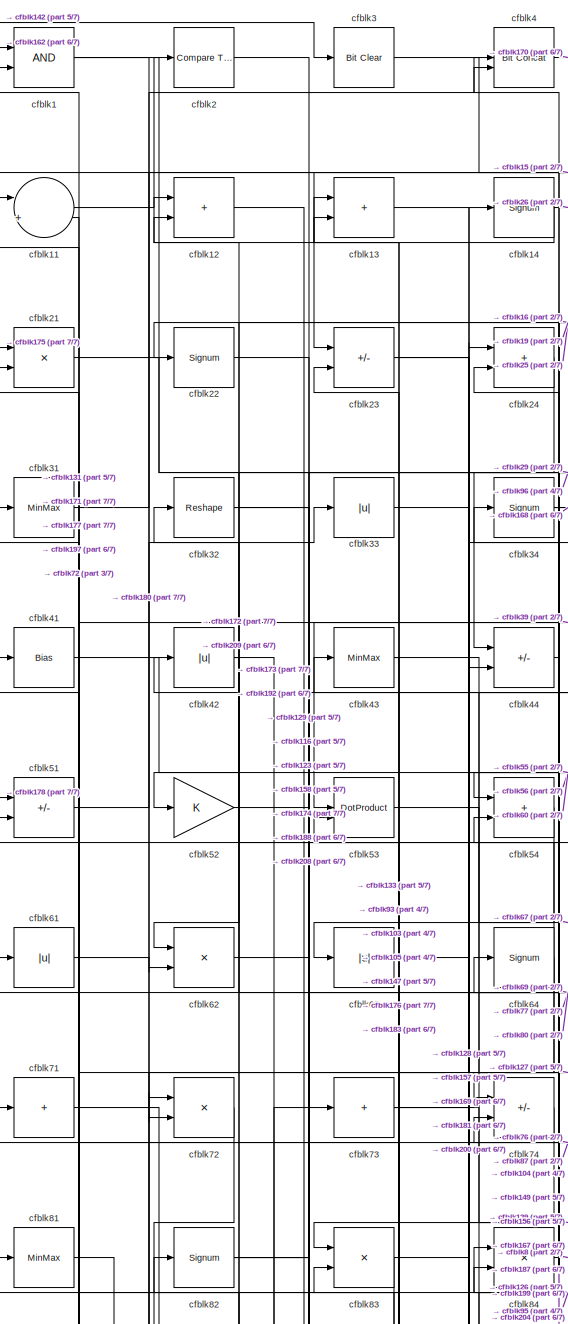
[diagram: root canvas - part 1/7, top left region]
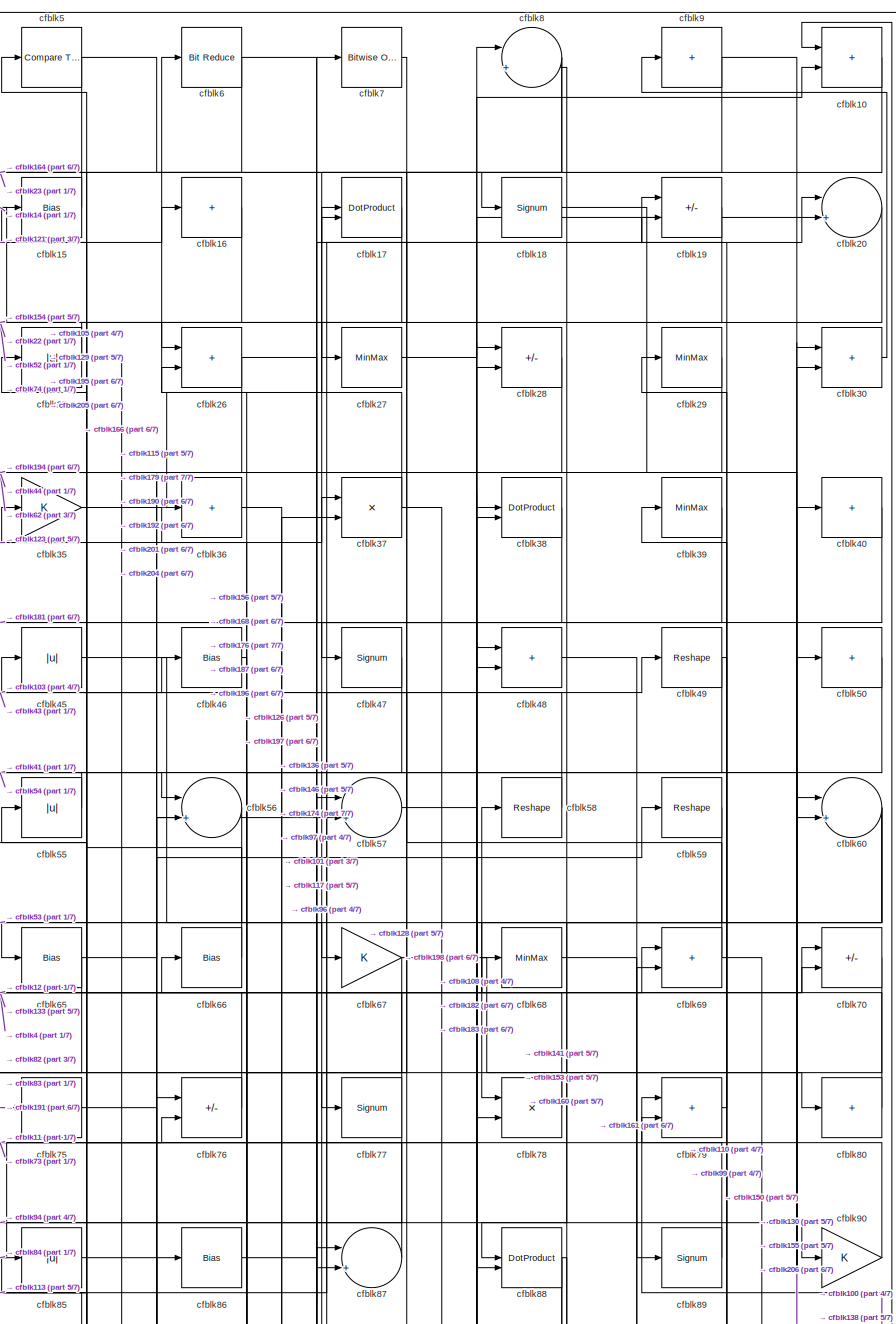
[diagram: root canvas - part 2/7, top right region]
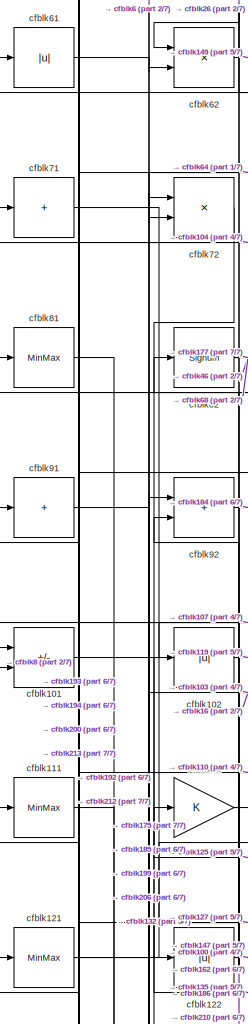
[diagram: root canvas - part 3/7, middle left region]
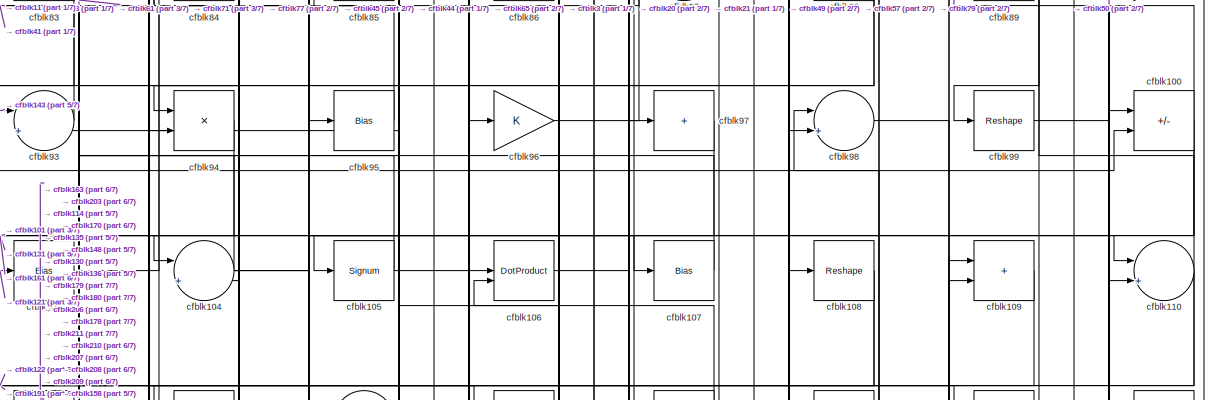
[diagram: root canvas - part 4/7, full width, middle band]
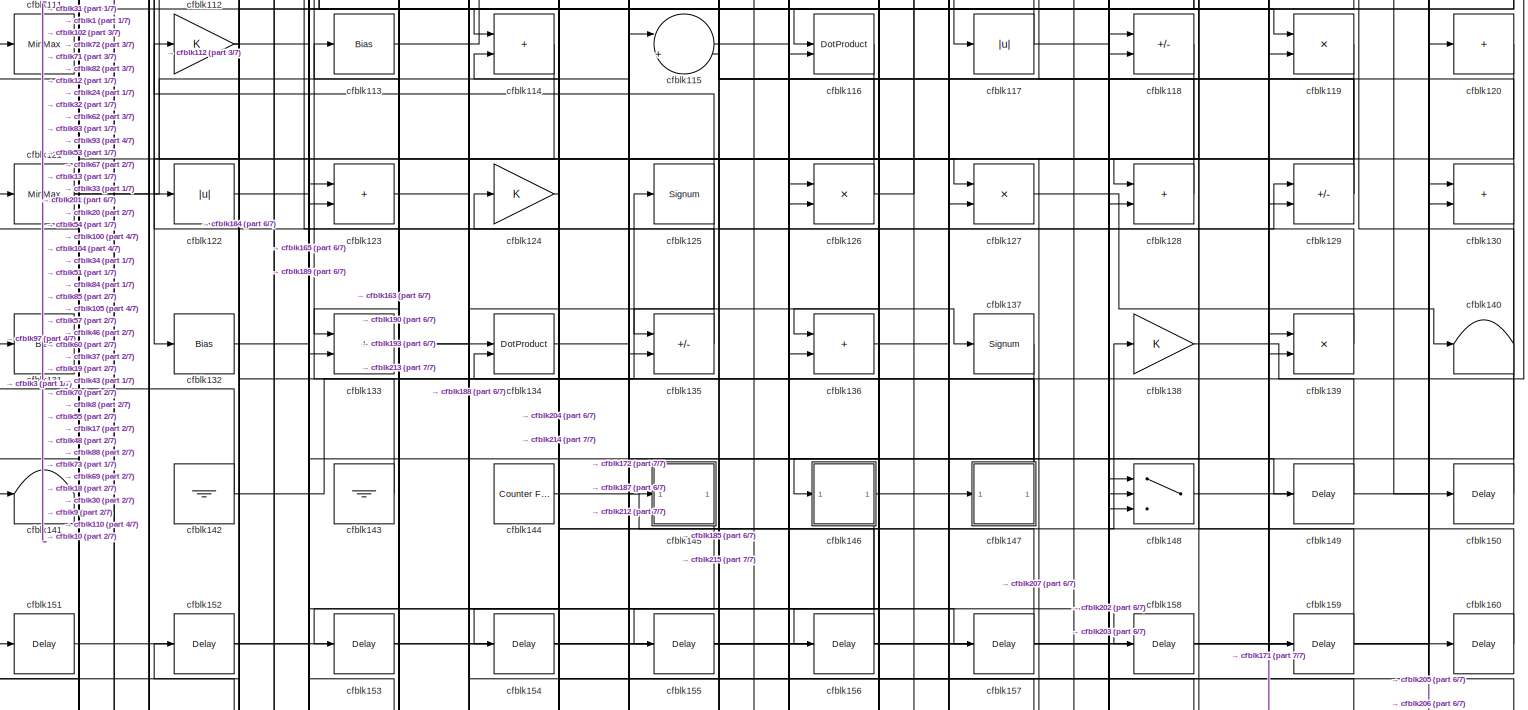
[diagram: root canvas - part 5/7, full width, middle band]
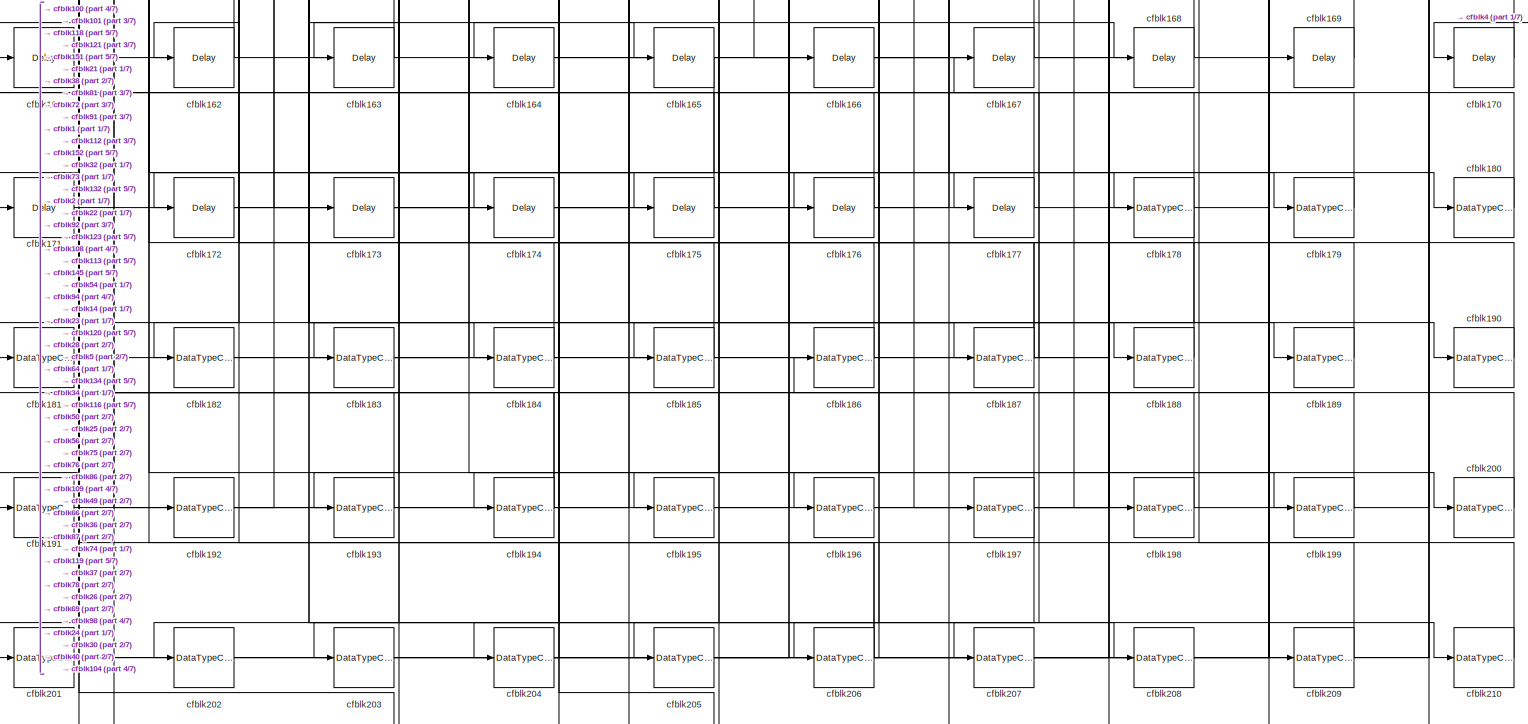
[diagram: root canvas - part 6/7, full width, bottom band]
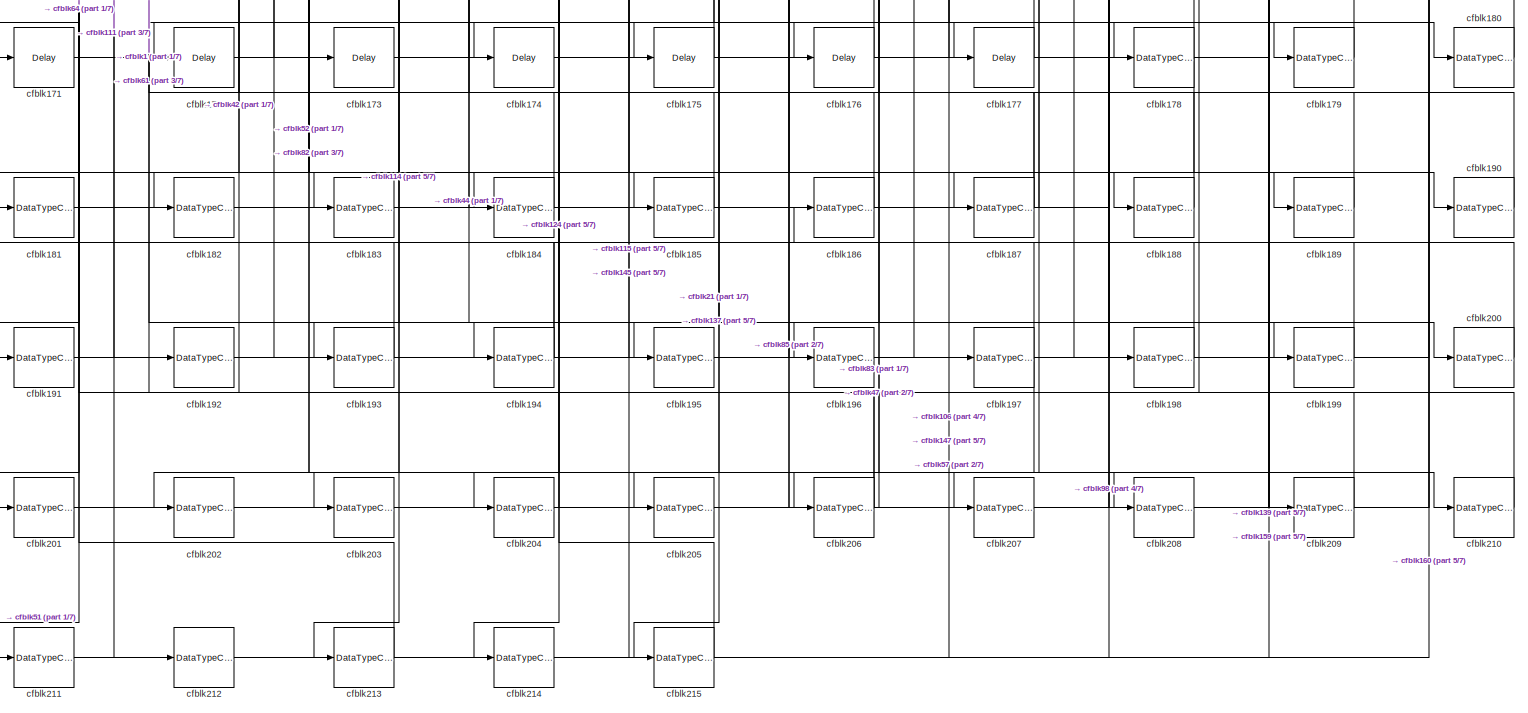
[diagram: root canvas - part 7/7, full width, bottom band]
MODEL slx_1bc209707fd7
KIND model
CONFIG AbsTol = auto
CONFIG EnableMultiTasking = off
CONFIG FixedStep = auto
CONFIG MaxStep = auto
CONFIG MinStep = auto
CONFIG RelTol = 1e-3
CONFIG SampleTimeConstraint = Unconstrained
CONFIG SolverName = VariableStepAuto
CONFIG StartTime = 0.0
CONFIG StopTime = 10.0
BLOCK [Logic] cfblk1
  AllPortsSameDT = off
  OutDataTypeStr = boolean
BLOCK [Sum] cfblk10
  IconShape = rectangular
BLOCK [Sum] cfblk100
  IconShape = rectangular
  Inputs = +-
BLOCK [Sum] cfblk101
  IconShape = rectangular
  Inputs = +-
BLOCK [Abs] cfblk102
  SaturateOnIntegerOverflow = off
BLOCK [Bias] cfblk103
  Bias = 0.0
  SaturateOnIntegerOverflow = off
BLOCK [Sum] cfblk104
  Inputs = |++
BLOCK [Signum] cfblk105
BLOCK [DotProduct] cfblk106
  OutDataTypeStr = Inherit: Inherit via internal rule
BLOCK [Bias] cfblk107
  Bias = 0.0
  SaturateOnIntegerOverflow = off
BLOCK [Reshape] cfblk108
BLOCK [Sum] cfblk109
  IconShape = rectangular
BLOCK [Sum] cfblk11
  Inputs = |++
BLOCK [Sum] cfblk110
  Inputs = |++
BLOCK [MinMax] cfblk111
BLOCK [Gain] cfblk112
BLOCK [Bias] cfblk113
  Bias = 0.0
  SaturateOnIntegerOverflow = off
BLOCK [Sum] cfblk114
  IconShape = rectangular
BLOCK [Sum] cfblk115
  Inputs = |++
BLOCK [DotProduct] cfblk116
  OutDataTypeStr = Inherit: Inherit via internal rule
BLOCK [Abs] cfblk117
  SaturateOnIntegerOverflow = off
BLOCK [Sum] cfblk118
  IconShape = rectangular
  Inputs = +-
BLOCK [Product] cfblk119
  Inputs = */
  RndMeth = Zero
  SaturateOnIntegerOverflow = on
BLOCK [Sum] cfblk12
  IconShape = rectangular
BLOCK [Sum] cfblk120
  IconShape = rectangular
  Inputs = +
BLOCK [MinMax] cfblk121
BLOCK [Abs] cfblk122
  SaturateOnIntegerOverflow = off
BLOCK [Sum] cfblk123
  IconShape = rectangular
BLOCK [Gain] cfblk124
BLOCK [Signum] cfblk125
BLOCK [Product] cfblk126
  Inputs = */
  RndMeth = Zero
  SaturateOnIntegerOverflow = on
BLOCK [Product] cfblk127
  Inputs = */
  RndMeth = Zero
  SaturateOnIntegerOverflow = on
BLOCK [Sum] cfblk128
  IconShape = rectangular
BLOCK [Sum] cfblk129
  IconShape = rectangular
  Inputs = +-
BLOCK [Sum] cfblk13
  IconShape = rectangular
BLOCK [Sum] cfblk130
  IconShape = rectangular
BLOCK [Bias] cfblk131
  Bias = 0.0
  SaturateOnIntegerOverflow = off
BLOCK [Bias] cfblk132
  Bias = 0.0
  SaturateOnIntegerOverflow = off
BLOCK [Sum] cfblk133
  IconShape = rectangular
BLOCK [DotProduct] cfblk134
  OutDataTypeStr = Inherit: Inherit via internal rule
BLOCK [Sum] cfblk135
  IconShape = rectangular
  Inputs = +-
BLOCK [Sum] cfblk136
  IconShape = rectangular
BLOCK [Signum] cfblk137
BLOCK [Gain] cfblk138
BLOCK [Product] cfblk139
  Inputs = */
  RndMeth = Zero
  SaturateOnIntegerOverflow = on
BLOCK [Signum] cfblk14
BLOCK [Terminator] cfblk140
BLOCK [Terminator] cfblk141
BLOCK [Ground] cfblk142
BLOCK [Ground] cfblk143
BLOCK [Reference] cfblk144  REF=hdlsllib/Sources/Counter
Free-Running
  SourceBlock = hdlsllib/Sources/Counter\nFree-Running
  SourceType = Counter Free-Running
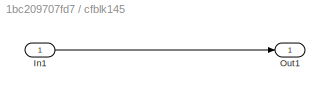
BLOCK [SubSystem] cfblk145
  LibrarySourceBlock = hdlsllib/Ports &\nSubsystems/Subsystem
BLOCK [Inport] cfblk145/In1
BLOCK [Outport] cfblk145/Out1
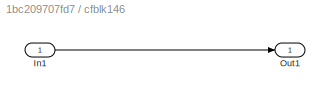
BLOCK [SubSystem] cfblk146
  LibrarySourceBlock = hdlsllib/Ports &\nSubsystems/Subsystem
BLOCK [Inport] cfblk146/In1
BLOCK [Outport] cfblk146/Out1
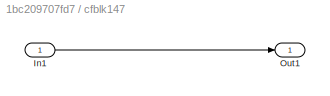
BLOCK [SubSystem] cfblk147
  LibrarySourceBlock = hdlsllib/Ports &\nSubsystems/Subsystem
BLOCK [Inport] cfblk147/In1
BLOCK [Outport] cfblk147/Out1
BLOCK [Switch] cfblk148
  InputSameDT = off
  SaturateOnIntegerOverflow = off
BLOCK [Delay] cfblk149
  InputPortMap = u0
  SampleTime = 1
BLOCK [Bias] cfblk15
  Bias = 0.0
  SaturateOnIntegerOverflow = off
BLOCK [Delay] cfblk150
  InputPortMap = u0
  SampleTime = 1
BLOCK [Delay] cfblk151
  InputPortMap = u0
  SampleTime = 1
BLOCK [Delay] cfblk152
  InputPortMap = u0
  SampleTime = 1
BLOCK [Delay] cfblk153
  InputPortMap = u0
  SampleTime = 1
BLOCK [Delay] cfblk154
  InputPortMap = u0
  SampleTime = 1
BLOCK [Delay] cfblk155
  InputPortMap = u0
  SampleTime = 1
BLOCK [Delay] cfblk156
  InputPortMap = u0
  SampleTime = 1
BLOCK [Delay] cfblk157
  InputPortMap = u0
  SampleTime = 1
BLOCK [Delay] cfblk158
  InputPortMap = u0
  SampleTime = 1
BLOCK [Delay] cfblk159
  InputPortMap = u0
  SampleTime = 1
BLOCK [Sum] cfblk16
  IconShape = rectangular
  Inputs = +
BLOCK [Delay] cfblk160
  InputPortMap = u0
  SampleTime = 1
BLOCK [Delay] cfblk161
  InputPortMap = u0
  SampleTime = 1
BLOCK [Delay] cfblk162
  InputPortMap = u0
  SampleTime = 1
BLOCK [Delay] cfblk163
  InputPortMap = u0
  SampleTime = 1
BLOCK [Delay] cfblk164
  InputPortMap = u0
  SampleTime = 1
BLOCK [Delay] cfblk165
  InputPortMap = u0
  SampleTime = 1
BLOCK [Delay] cfblk166
  InputPortMap = u0
  SampleTime = 1
BLOCK [Delay] cfblk167
  InputPortMap = u0
  SampleTime = 1
BLOCK [Delay] cfblk168
  InputPortMap = u0
  SampleTime = 1
BLOCK [Delay] cfblk169
  InputPortMap = u0
  SampleTime = 1
BLOCK [DotProduct] cfblk17
  OutDataTypeStr = Inherit: Inherit via internal rule
BLOCK [Delay] cfblk170
  InputPortMap = u0
  SampleTime = 1
BLOCK [Delay] cfblk171
  InputPortMap = u0
  SampleTime = 1
BLOCK [Delay] cfblk172
  InputPortMap = u0
  SampleTime = 1
BLOCK [Delay] cfblk173
  InputPortMap = u0
  SampleTime = 1
BLOCK [Delay] cfblk174
  InputPortMap = u0
  SampleTime = 1
BLOCK [Delay] cfblk175
  InputPortMap = u0
  SampleTime = 1
BLOCK [Delay] cfblk176
  InputPortMap = u0
  SampleTime = 1
BLOCK [Delay] cfblk177
  InputPortMap = u0
  SampleTime = 1
BLOCK [DataTypeConversion] cfblk178
  RndMeth = Floor
  SaturateOnIntegerOverflow = off
BLOCK [DataTypeConversion] cfblk179
  OutDataTypeStr = uint8
  RndMeth = Floor
  SaturateOnIntegerOverflow = off
BLOCK [Signum] cfblk18
BLOCK [DataTypeConversion] cfblk180
  OutDataTypeStr = uint8
  RndMeth = Floor
  SaturateOnIntegerOverflow = off
BLOCK [DataTypeConversion] cfblk181
  OutDataTypeStr = uint8
  RndMeth = Floor
  SaturateOnIntegerOverflow = off
BLOCK [DataTypeConversion] cfblk182
  OutDataTypeStr = uint8
  RndMeth = Floor
  SaturateOnIntegerOverflow = off
BLOCK [DataTypeConversion] cfblk183
  OutDataTypeStr = uint8
  RndMeth = Floor
  SaturateOnIntegerOverflow = off
BLOCK [DataTypeConversion] cfblk184
  OutDataTypeStr = uint8
  RndMeth = Floor
  SaturateOnIntegerOverflow = off
BLOCK [DataTypeConversion] cfblk185
  OutDataTypeStr = uint8
  RndMeth = Floor
  SaturateOnIntegerOverflow = off
BLOCK [DataTypeConversion] cfblk186
  OutDataTypeStr = uint8
  RndMeth = Floor
  SaturateOnIntegerOverflow = off
BLOCK [DataTypeConversion] cfblk187
  RndMeth = Floor
  SaturateOnIntegerOverflow = off
BLOCK [DataTypeConversion] cfblk188
  OutDataTypeStr = uint8
  RndMeth = Floor
  SaturateOnIntegerOverflow = off
BLOCK [DataTypeConversion] cfblk189
  OutDataTypeStr = uint8
  RndMeth = Floor
  SaturateOnIntegerOverflow = off
BLOCK [Sum] cfblk19
  IconShape = rectangular
  Inputs = +-
BLOCK [DataTypeConversion] cfblk190
  OutDataTypeStr = uint8
  RndMeth = Floor
  SaturateOnIntegerOverflow = off
BLOCK [DataTypeConversion] cfblk191
  OutDataTypeStr = uint8
  RndMeth = Floor
  SaturateOnIntegerOverflow = off
BLOCK [DataTypeConversion] cfblk192
  RndMeth = Floor
  SaturateOnIntegerOverflow = off
BLOCK [DataTypeConversion] cfblk193
  OutDataTypeStr = uint8
  RndMeth = Floor
  SaturateOnIntegerOverflow = off
BLOCK [DataTypeConversion] cfblk194
  RndMeth = Floor
  SaturateOnIntegerOverflow = off
BLOCK [DataTypeConversion] cfblk195
  OutDataTypeStr = uint8
  RndMeth = Floor
  SaturateOnIntegerOverflow = off
BLOCK [DataTypeConversion] cfblk196
  OutDataTypeStr = uint8
  RndMeth = Floor
  SaturateOnIntegerOverflow = off
BLOCK [DataTypeConversion] cfblk197
  RndMeth = Floor
  SaturateOnIntegerOverflow = off
BLOCK [DataTypeConversion] cfblk198
  OutDataTypeStr = uint8
  RndMeth = Floor
  SaturateOnIntegerOverflow = off
BLOCK [DataTypeConversion] cfblk199
  OutDataTypeStr = uint8
  RndMeth = Floor
  SaturateOnIntegerOverflow = off
BLOCK [Reference] cfblk2  REF=hdlsllib/Logic and Bit
Operations/Compare
To Zero
  SourceBlock = hdlsllib/Logic and Bit\nOperations/Compare\nTo Zero
  SourceType = Compare To Zero
BLOCK [Sum] cfblk20
  Inputs = |++
BLOCK [DataTypeConversion] cfblk200
  OutDataTypeStr = uint8
  RndMeth = Floor
  SaturateOnIntegerOverflow = off
BLOCK [DataTypeConversion] cfblk201
  RndMeth = Floor
  SaturateOnIntegerOverflow = off
BLOCK [DataTypeConversion] cfblk202
  OutDataTypeStr = uint8
  RndMeth = Floor
  SaturateOnIntegerOverflow = off
BLOCK [DataTypeConversion] cfblk203
  OutDataTypeStr = uint8
  RndMeth = Floor
  SaturateOnIntegerOverflow = off
BLOCK [DataTypeConversion] cfblk204
  RndMeth = Floor
  SaturateOnIntegerOverflow = off
BLOCK [DataTypeConversion] cfblk205
  OutDataTypeStr = uint8
  RndMeth = Floor
  SaturateOnIntegerOverflow = off
BLOCK [DataTypeConversion] cfblk206
  RndMeth = Floor
  SaturateOnIntegerOverflow = off
BLOCK [DataTypeConversion] cfblk207
  OutDataTypeStr = uint8
  RndMeth = Floor
  SaturateOnIntegerOverflow = off
BLOCK [DataTypeConversion] cfblk208
  OutDataTypeStr = uint8
  RndMeth = Floor
  SaturateOnIntegerOverflow = off
BLOCK [DataTypeConversion] cfblk209
  OutDataTypeStr = uint8
  RndMeth = Floor
  SaturateOnIntegerOverflow = off
BLOCK [Product] cfblk21
  Inputs = */
  RndMeth = Zero
  SaturateOnIntegerOverflow = on
BLOCK [DataTypeConversion] cfblk210
  OutDataTypeStr = uint8
  RndMeth = Floor
  SaturateOnIntegerOverflow = off
BLOCK [DataTypeConversion] cfblk211
  OutDataTypeStr = uint8
  RndMeth = Floor
  SaturateOnIntegerOverflow = off
BLOCK [DataTypeConversion] cfblk212
  RndMeth = Floor
  SaturateOnIntegerOverflow = off
BLOCK [DataTypeConversion] cfblk213
  OutDataTypeStr = uint8
  RndMeth = Floor
  SaturateOnIntegerOverflow = off
BLOCK [DataTypeConversion] cfblk214
  RndMeth = Floor
  SaturateOnIntegerOverflow = off
BLOCK [DataTypeConversion] cfblk215
  OutDataTypeStr = uint8
  RndMeth = Floor
  SaturateOnIntegerOverflow = off
BLOCK [Signum] cfblk22
BLOCK [Sum] cfblk23
  IconShape = rectangular
  Inputs = +-
BLOCK [Sum] cfblk24
  IconShape = rectangular
BLOCK [Abs] cfblk25
  SaturateOnIntegerOverflow = off
BLOCK [Sum] cfblk26
  IconShape = rectangular
BLOCK [MinMax] cfblk27
BLOCK [Sum] cfblk28
  IconShape = rectangular
  Inputs = +-
BLOCK [MinMax] cfblk29
BLOCK [Reference] cfblk3  REF=simulink/Logic and Bit
Operations/Bit Clear
  LibrarySourceBlock = hdlsllib/Logic and Bit\nOperations/Bit Clear
  SourceBlock = simulink/Logic and Bit\nOperations/Bit Clear
  SourceType = Bit Clear
BLOCK [Sum] cfblk30
  IconShape = rectangular
BLOCK [MinMax] cfblk31
BLOCK [Reshape] cfblk32
BLOCK [Abs] cfblk33
  SaturateOnIntegerOverflow = off
BLOCK [Signum] cfblk34
BLOCK [Gain] cfblk35
BLOCK [Sum] cfblk36
  IconShape = rectangular
  Inputs = +
BLOCK [Product] cfblk37
  Inputs = */
  RndMeth = Zero
  SaturateOnIntegerOverflow = on
BLOCK [DotProduct] cfblk38
  OutDataTypeStr = Inherit: Inherit via internal rule
BLOCK [MinMax] cfblk39
BLOCK [Reference] cfblk4  REF=hdlsllib/Logic and Bit
Operations/Bit Concat
  SourceBlock = hdlsllib/Logic and Bit\nOperations/Bit Concat
  SourceType = Bit Concat
BLOCK [Sum] cfblk40
  IconShape = rectangular
  Inputs = +
BLOCK [Bias] cfblk41
  Bias = 0.0
  SaturateOnIntegerOverflow = off
BLOCK [Abs] cfblk42
  SaturateOnIntegerOverflow = off
BLOCK [MinMax] cfblk43
BLOCK [Sum] cfblk44
  IconShape = rectangular
  Inputs = +-
BLOCK [Abs] cfblk45
  SaturateOnIntegerOverflow = off
BLOCK [Bias] cfblk46
  Bias = 0.0
  SaturateOnIntegerOverflow = off
BLOCK [Signum] cfblk47
BLOCK [Sum] cfblk48
  IconShape = rectangular
BLOCK [Reshape] cfblk49
BLOCK [Reference] cfblk5  REF=hdlsllib/Logic and Bit
Operations/Compare
To Zero
  SourceBlock = hdlsllib/Logic and Bit\nOperations/Compare\nTo Zero
  SourceType = Compare To Zero
BLOCK [Sum] cfblk50
  IconShape = rectangular
  Inputs = +
BLOCK [Sum] cfblk51
  IconShape = rectangular
  Inputs = +-
BLOCK [Gain] cfblk52
BLOCK [DotProduct] cfblk53
  OutDataTypeStr = Inherit: Inherit via internal rule
BLOCK [Sum] cfblk54
  IconShape = rectangular
BLOCK [Abs] cfblk55
  SaturateOnIntegerOverflow = off
BLOCK [Sum] cfblk56
  Inputs = |++
BLOCK [Sum] cfblk57
  Inputs = |++
BLOCK [Reshape] cfblk58
BLOCK [Reshape] cfblk59
BLOCK [Reference] cfblk6  REF=hdlsllib/Logic and Bit
Operations/Bit Reduce
  SourceBlock = hdlsllib/Logic and Bit\nOperations/Bit Reduce
  SourceType = Bit Reduce
BLOCK [Sum] cfblk60
  Inputs = |++
BLOCK [Abs] cfblk61
  SaturateOnIntegerOverflow = off
BLOCK [Product] cfblk62
  Inputs = */
  RndMeth = Zero
  SaturateOnIntegerOverflow = on
BLOCK [Abs] cfblk63
  SaturateOnIntegerOverflow = off
BLOCK [Signum] cfblk64
BLOCK [Bias] cfblk65
  Bias = 0.0
  SaturateOnIntegerOverflow = off
BLOCK [Bias] cfblk66
  Bias = 0.0
  SaturateOnIntegerOverflow = off
BLOCK [Gain] cfblk67
BLOCK [MinMax] cfblk68
BLOCK [Sum] cfblk69
  IconShape = rectangular
BLOCK [Reference] cfblk7  REF=simulink/Logic and Bit
Operations/Bitwise
Operator
  LibrarySourceBlock = hdlsllib/Logic and Bit\nOperations/Bitwise\nOperator
  SourceBlock = simulink/Logic and Bit\nOperations/Bitwise\nOperator
  SourceType = Bitwise Operator
BLOCK [Sum] cfblk70
  IconShape = rectangular
  Inputs = +-
BLOCK [Sum] cfblk71
  IconShape = rectangular
  Inputs = +
BLOCK [Product] cfblk72
  Inputs = */
  RndMeth = Zero
  SaturateOnIntegerOverflow = on
BLOCK [Sum] cfblk73
  IconShape = rectangular
  Inputs = +
BLOCK [Sum] cfblk74
  IconShape = rectangular
  Inputs = +-
BLOCK [MinMax] cfblk75
BLOCK [Sum] cfblk76
  IconShape = rectangular
  Inputs = +-
BLOCK [Signum] cfblk77
BLOCK [Product] cfblk78
  Inputs = */
  RndMeth = Zero
  SaturateOnIntegerOverflow = on
BLOCK [Sum] cfblk79
  IconShape = rectangular
BLOCK [Sum] cfblk8
  Inputs = |++
BLOCK [Sum] cfblk80
  IconShape = rectangular
  Inputs = +
BLOCK [MinMax] cfblk81
BLOCK [Signum] cfblk82
BLOCK [Product] cfblk83
  Inputs = */
  RndMeth = Zero
  SaturateOnIntegerOverflow = on
BLOCK [Product] cfblk84
  Inputs = */
  RndMeth = Zero
  SaturateOnIntegerOverflow = on
BLOCK [Abs] cfblk85
  SaturateOnIntegerOverflow = off
BLOCK [Bias] cfblk86
  Bias = 0.0
  SaturateOnIntegerOverflow = off
BLOCK [Sum] cfblk87
  Inputs = |++
BLOCK [DotProduct] cfblk88
  OutDataTypeStr = Inherit: Inherit via internal rule
BLOCK [Signum] cfblk89
BLOCK [Sum] cfblk9
  IconShape = rectangular
  Inputs = +
BLOCK [Gain] cfblk90
BLOCK [Sum] cfblk91
  IconShape = rectangular
  Inputs = +
BLOCK [Sum] cfblk92
  IconShape = rectangular
BLOCK [Sum] cfblk93
  Inputs = |++
BLOCK [Product] cfblk94
  Inputs = */
  RndMeth = Zero
  SaturateOnIntegerOverflow = on
BLOCK [Bias] cfblk95
  Bias = 0.0
  SaturateOnIntegerOverflow = off
BLOCK [Gain] cfblk96
BLOCK [Sum] cfblk97
  IconShape = rectangular
  Inputs = +
BLOCK [Sum] cfblk98
  Inputs = |++
BLOCK [Reshape] cfblk99
NET cfblk100:1 -> cfblk135:2, cfblk161:1, cfblk79:1
LINE cfblk101:1 -> cfblk107:1
NET cfblk102:1 -> cfblk119:1, cfblk119:2
NET cfblk103:1 -> cfblk13:2, cfblk45:1
NET cfblk104:1 -> cfblk110:1, cfblk148:3, cfblk71:1
NET cfblk105:1 -> cfblk136:2, cfblk13:1
LINE cfblk106:1 -> cfblk178:1
LINE cfblk107:1 -> cfblk61:1
NET cfblk108:1 -> cfblk191:1, cfblk203:1
LINE cfblk109:1 -> cfblk206:1
LINE cfblk10:1 -> cfblk65:1
NET cfblk110:1 -> cfblk114:1, cfblk122:1, cfblk79:2
LINE cfblk111:1 -> cfblk212:1
NET cfblk112:1 -> cfblk162:1, cfblk210:1
LINE cfblk113:1 -> cfblk20:1
LINE cfblk114:1 -> cfblk213:1
LINE cfblk115:1 -> cfblk57:2
LINE cfblk116:1 -> cfblk185:1
NET cfblk117:1 -> cfblk20:2, cfblk55:1
LINE cfblk118:1 -> cfblk201:1
LINE cfblk119:1 -> cfblk207:1
LINE cfblk11:1 -> cfblk2:1
LINE cfblk120:1 -> cfblk204:1
NET cfblk121:1 -> cfblk103:1, cfblk16:1
LINE cfblk122:1 -> cfblk100:2
LINE cfblk123:1 -> cfblk37:1
LINE cfblk124:1 -> cfblk214:1
NET cfblk125:1 -> cfblk102:1, cfblk135:1
NET cfblk126:1 -> cfblk37:2, cfblk84:1
LINE cfblk127:1 -> cfblk140:1
LINE cfblk128:1 -> cfblk17:1
NET cfblk129:1 -> cfblk51:2, cfblk85:1
LINE cfblk12:1 -> cfblk129:1
NET cfblk130:1 -> cfblk148:2, cfblk93:2
LINE cfblk131:1 -> cfblk31:1
LINE cfblk132:1 -> cfblk165:1
NET cfblk133:1 -> cfblk137:1, cfblk70:1
LINE cfblk134:1 -> cfblk187:1
LINE cfblk135:1 -> cfblk112:1
LINE cfblk136:1 -> cfblk19:1
LINE cfblk137:1 -> cfblk215:1
LINE cfblk138:1 -> cfblk10:1
LINE cfblk139:1 -> cfblk115:2
LINE cfblk13:1 -> cfblk116:2
NET cfblk142:1 -> cfblk125:1, cfblk3:1
LINE cfblk143:1 -> cfblk93:1
LINE cfblk144:1 -> cfblk138:1
LINE cfblk145/In1:1 -> cfblk145/Out1:1
LINE cfblk145:1 -> cfblk193:1
LINE cfblk146/In1:1 -> cfblk146/Out1:1
NET cfblk146:1 -> cfblk155:1, cfblk70:2
LINE cfblk147/In1:1 -> cfblk147/Out1:1
NET cfblk147:1 -> cfblk53:2, cfblk82:1
LINE cfblk148:1 -> cfblk100:1
LINE cfblk149:1 -> cfblk54:2
NET cfblk14:1 -> cfblk12:2, cfblk26:1
LINE cfblk150:1 -> cfblk19:2
LINE cfblk151:1 -> cfblk126:2
LINE cfblk152:1 -> cfblk189:1
LINE cfblk153:1 -> cfblk48:1
LINE cfblk154:1 -> cfblk30:1
LINE cfblk155:1 -> cfblk60:1
LINE cfblk156:1 -> cfblk84:2
LINE cfblk157:1 -> cfblk114:2
LINE cfblk158:1 -> cfblk110:2
LINE cfblk159:1 -> cfblk148:1
LINE cfblk15:1 -> cfblk23:1
LINE cfblk160:1 -> cfblk8:2
LINE cfblk161:1 -> cfblk69:2
LINE cfblk162:1 -> cfblk1:1
LINE cfblk163:1 -> cfblk123:1
LINE cfblk164:1 -> cfblk78:2
LINE cfblk165:1 -> cfblk182:1
LINE cfblk166:1 -> cfblk87:1
LINE cfblk167:1 -> cfblk74:2
LINE cfblk168:1 -> cfblk26:2
LINE cfblk169:1 -> cfblk24:1
LINE cfblk16:1 -> cfblk52:1
LINE cfblk170:1 -> cfblk104:2
LINE cfblk171:1 -> cfblk139:1
LINE cfblk172:1 -> cfblk115:1
LINE cfblk173:1 -> cfblk44:2
LINE cfblk174:1 -> cfblk57:1
LINE cfblk175:1 -> cfblk21:1
LINE cfblk176:1 -> cfblk83:2
LINE cfblk177:1 -> cfblk1:2
NET cfblk178:1 -> cfblk211:1, cfblk51:1
LINE cfblk179:1 -> cfblk106:1
LINE cfblk17:1 -> cfblk154:1
LINE cfblk180:1 -> cfblk106:2
LINE cfblk181:1 -> cfblk14:1
LINE cfblk182:1 -> cfblk38:1
LINE cfblk183:1 -> cfblk38:2
LINE cfblk184:1 -> cfblk152:1
LINE cfblk185:1 -> cfblk92:1
LINE cfblk186:1 -> cfblk92:2
NET cfblk187:1 -> cfblk167:1, cfblk34:1, cfblk66:1
LINE cfblk188:1 -> cfblk134:1
LINE cfblk189:1 -> cfblk134:2
LINE cfblk18:1 -> cfblk130:1
LINE cfblk190:1 -> cfblk113:1
LINE cfblk191:1 -> cfblk75:1
NET cfblk192:1 -> cfblk73:1, cfblk76:1
LINE cfblk193:1 -> cfblk81:1
NET cfblk194:1 -> cfblk101:1, cfblk121:1
LINE cfblk195:1 -> cfblk28:1
LINE cfblk196:1 -> cfblk28:2
NET cfblk197:1 -> cfblk202:1, cfblk21:2, cfblk40:1
LINE cfblk198:1 -> cfblk36:1
LINE cfblk199:1 -> cfblk24:2
LINE cfblk19:1 -> cfblk74:1
NET cfblk1:1 -> cfblk126:1, cfblk180:1
LINE cfblk200:1 -> cfblk91:1
NET cfblk201:1 -> cfblk169:1, cfblk56:2
LINE cfblk202:1 -> cfblk118:1
LINE cfblk203:1 -> cfblk118:2
NET cfblk204:1 -> cfblk64:1, cfblk86:1
LINE cfblk205:1 -> cfblk120:1
NET cfblk206:1 -> cfblk151:1, cfblk186:1, cfblk30:2, cfblk72:1
LINE cfblk207:1 -> cfblk109:1
LINE cfblk208:1 -> cfblk109:2
LINE cfblk209:1 -> cfblk32:1
LINE cfblk20:1 -> cfblk105:1
LINE cfblk210:1 -> cfblk98:1
LINE cfblk211:1 -> cfblk98:2
NET cfblk212:1 -> cfblk145:1, cfblk147:1
LINE cfblk213:1 -> cfblk111:1
NET cfblk214:1 -> cfblk159:1, cfblk160:1
LINE cfblk215:1 -> cfblk124:1
LINE cfblk21:1 -> cfblk96:1
LINE cfblk22:1 -> cfblk208:1
NET cfblk23:1 -> cfblk200:1, cfblk56:1
LINE cfblk24:1 -> cfblk123:2
NET cfblk25:1 -> cfblk166:1, cfblk22:1
NET cfblk26:1 -> cfblk48:2, cfblk62:1
LINE cfblk27:1 -> cfblk10:2
LINE cfblk28:1 -> cfblk194:1
LINE cfblk29:1 -> cfblk44:1
LINE cfblk2:1 -> cfblk188:1
LINE cfblk30:1 -> cfblk9:1
LINE cfblk31:1 -> cfblk4:2
NET cfblk32:1 -> cfblk116:1, cfblk158:1
LINE cfblk33:1 -> cfblk157:1
NET cfblk34:1 -> cfblk129:2, cfblk168:1
LINE cfblk35:1 -> cfblk17:2
LINE cfblk36:1 -> cfblk197:1
NET cfblk37:1 -> cfblk198:1, cfblk6:1
LINE cfblk38:1 -> cfblk181:1
LINE cfblk39:1 -> cfblk53:1
LINE cfblk3:1 -> cfblk95:1
LINE cfblk40:1 -> cfblk47:1
LINE cfblk41:1 -> cfblk60:2
NET cfblk42:1 -> cfblk172:1, cfblk173:1
NET cfblk43:1 -> cfblk127:2, cfblk63:1
LINE cfblk44:1 -> cfblk104:1
LINE cfblk45:1 -> cfblk97:1
LINE cfblk46:1 -> cfblk136:1
LINE cfblk47:1 -> cfblk176:1
LINE cfblk48:1 -> cfblk90:1
NET cfblk49:1 -> cfblk196:1, cfblk99:1
LINE cfblk4:1 -> cfblk170:1
LINE cfblk50:1 -> cfblk195:1
LINE cfblk51:1 -> cfblk33:1
LINE cfblk52:1 -> cfblk174:1
LINE cfblk53:1 -> cfblk67:1
LINE cfblk54:1 -> cfblk183:1
LINE cfblk55:1 -> cfblk54:1
LINE cfblk56:1 -> cfblk205:1
LINE cfblk57:1 -> cfblk108:1
LINE cfblk58:1 -> cfblk5:1
LINE cfblk59:1 -> cfblk78:1
NET cfblk5:1 -> cfblk164:1, cfblk18:1
NET cfblk60:1 -> cfblk146:1, cfblk88:1, cfblk88:2
LINE cfblk61:1 -> cfblk175:1
LINE cfblk62:1 -> cfblk149:1
NET cfblk63:1 -> cfblk128:2, cfblk23:2
NET cfblk64:1 -> cfblk171:1, cfblk42:1, cfblk72:2
NET cfblk65:1 -> cfblk59:1, cfblk94:1
LINE cfblk66:1 -> cfblk25:1
NET cfblk67:1 -> cfblk133:1, cfblk80:1
LINE cfblk68:1 -> cfblk89:1
NET cfblk69:1 -> cfblk150:1, cfblk43:1
NET cfblk6:1 -> cfblk62:2, cfblk87:2
LINE cfblk70:1 -> cfblk156:1
LINE cfblk71:1 -> cfblk127:1
LINE cfblk72:1 -> cfblk132:1
NET cfblk73:1 -> cfblk139:2, cfblk76:2
LINE cfblk74:1 -> cfblk83:1
LINE cfblk75:1 -> cfblk190:1
LINE cfblk76:1 -> cfblk35:1
NET cfblk77:1 -> cfblk4:1, cfblk94:2
LINE cfblk78:1 -> cfblk58:1
LINE cfblk79:1 -> cfblk39:1
LINE cfblk7:1 -> cfblk77:1
LINE cfblk80:1 -> cfblk12:1
LINE cfblk81:1 -> cfblk192:1
NET cfblk82:1 -> cfblk177:1, cfblk46:1, cfblk68:1
NET cfblk83:1 -> cfblk133:2, cfblk69:1
LINE cfblk84:1 -> cfblk8:1
LINE cfblk85:1 -> cfblk179:1
LINE cfblk86:1 -> cfblk7:1
LINE cfblk87:1 -> cfblk11:2
NET cfblk88:1 -> cfblk128:1, cfblk141:1, cfblk153:1
LINE cfblk89:1 -> cfblk15:1
NET cfblk8:1 -> cfblk101:2, cfblk117:1
LINE cfblk90:1 -> cfblk29:1
LINE cfblk91:1 -> cfblk199:1
LINE cfblk92:1 -> cfblk184:1
LINE cfblk93:1 -> cfblk41:1
LINE cfblk94:1 -> cfblk163:1
LINE cfblk95:1 -> cfblk11:1
LINE cfblk96:1 -> cfblk49:1
LINE cfblk97:1 -> cfblk131:1
LINE cfblk98:1 -> cfblk209:1
LINE cfblk99:1 -> cfblk50:1
NET cfblk9:1 -> cfblk130:2, cfblk27:1
note: NET lines group one-source signal fan-out (src -> all destinations, sorted); 1:1 wires keep LINE
